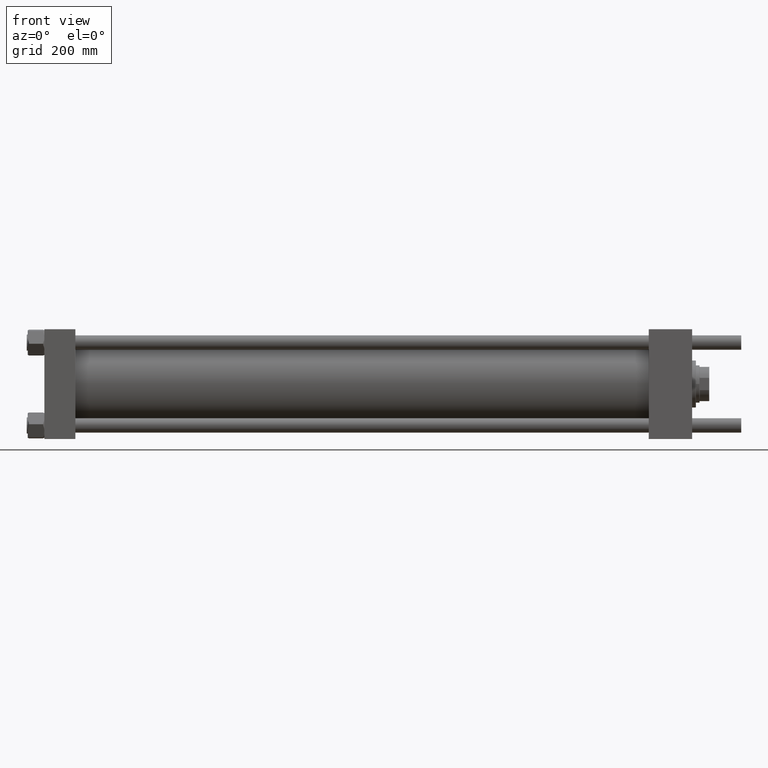
[diagram: clean part render]
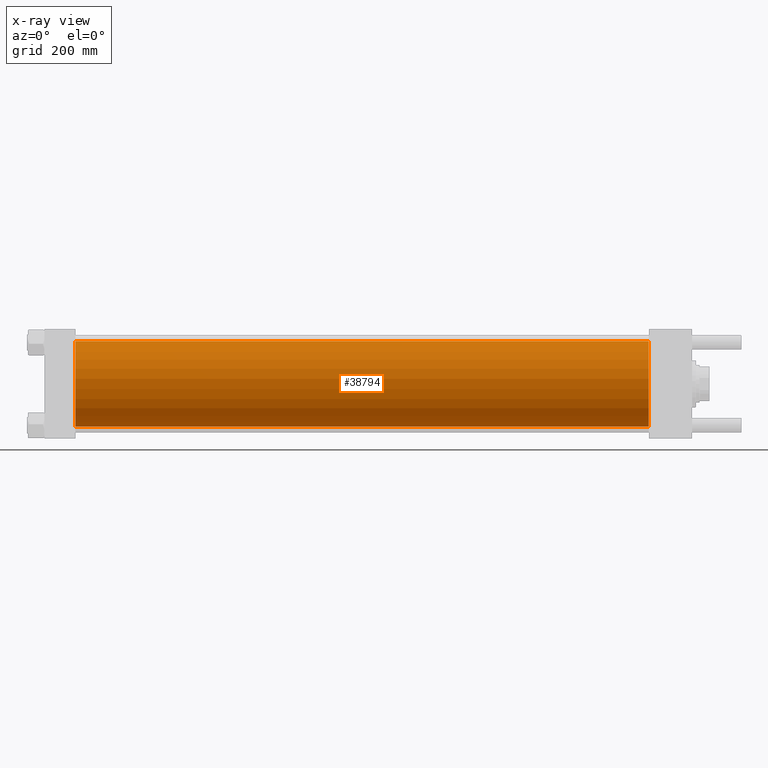
[diagram: x-ray — body ghosted, one internal face saturated and labeled with its STEP entity id]
A machine part, front view, then the same camera in x-ray: the body is ghosted and one INTERNAL B-rep face — a face not visible from any outside direction — is saturated and labeled: STEP entity #38794.
In plain terms, the highlighted cylindrical surface (partial cylindrical patch) has radius 80 mm, axis along (-1, -0, -0).
Its self-contained STEP definition (entity closure, byte-faithful):
#67 = DIRECTION ( 'NONE',  ( -1.000000000000000000, -0.000000000000000000, -0.000000000000000000 ) ) ;
#972 = DIRECTION ( 'NONE',  ( 0.000000000000000000, 0.000000000000000000, -1.000000000000000000 ) ) ;
#1346 = CARTESIAN_POINT ( 'NONE',  ( 1130.000000000000227, 7.195089179213615410E-15, -80.00000000000000000 ) ) ;
#2785 = CARTESIAN_POINT ( 'NONE',  ( 1130.000000000000227, -2.602085213965210642E-15, 0.000000000000000000 ) ) ;
#4455 = VECTOR ( 'NONE', #41855, 1000.000000000000000 ) ;
#6237 = ORIENTED_EDGE ( 'NONE', *, *, #20116, .T. ) ;
#8395 = VERTEX_POINT ( 'NONE', #46470 ) ;
#12085 = ORIENTED_EDGE ( 'NONE', *, *, #13089, .F. ) ;
#13089 = EDGE_CURVE ( 'NONE', #8395, #51812, #46896, .T. ) ;
#13662 = CYLINDRICAL_SURFACE ( 'NONE', #34698, 80.00000000000000000 ) ;
#14558 = VERTEX_POINT ( 'NONE', #22919 ) ;
#14847 = DIRECTION ( 'NONE',  ( 1.000000000000000000, 0.000000000000000000, 0.000000000000000000 ) ) ;
#15054 = EDGE_LOOP ( 'NONE', ( #6237, #46865, #12085, #44842 ) ) ;
#16403 = AXIS2_PLACEMENT_3D ( 'NONE', #45525, #14847, #972 ) ;
#16438 = VECTOR ( 'NONE', #42796, 1000.000000000000000 ) ;
#19991 = EDGE_CURVE ( 'NONE', #25332, #51812, #45624, .T. ) ;
#20116 = EDGE_CURVE ( 'NONE', #14558, #25332, #34981, .T. ) ;
#21291 = DIRECTION ( 'NONE',  ( 1.000000000000000000, 0.000000000000000000, 0.000000000000000000 ) ) ;
#22919 = CARTESIAN_POINT ( 'NONE',  ( 1130.000000000000227, -2.602085213965210642E-15, 80.00000000000000000 ) ) ;
#25158 = LINE ( 'NONE', #48003, #16438 ) ;
#25332 = VERTEX_POINT ( 'NONE', #37961 ) ;
#27599 = AXIS2_PLACEMENT_3D ( 'NONE', #2785, #21291, #29981 ) ;
#29981 = DIRECTION ( 'NONE',  ( 0.000000000000000000, 0.000000000000000000, -1.000000000000000000 ) ) ;
#34698 = AXIS2_PLACEMENT_3D ( 'NONE', #34804, #67, #44054 ) ;
#34804 = CARTESIAN_POINT ( 'NONE',  ( 1130.000000000000227, -2.602085213965210642E-15, 0.000000000000000000 ) ) ;
#34981 = CIRCLE ( 'NONE', #27599, 80.00000000000000000 ) ;
#37961 = CARTESIAN_POINT ( 'NONE',  ( 1130.000000000000227, 7.195089179213615410E-15, -80.00000000000000000 ) ) ;
#38794 = ADVANCED_FACE ( 'NONE', ( #47847 ), #13662, .F. ) ;
#41855 = DIRECTION ( 'NONE',  ( -1.000000000000000000, -0.000000000000000000, -0.000000000000000000 ) ) ;
#42796 = DIRECTION ( 'NONE',  ( -1.000000000000000000, -0.000000000000000000, -0.000000000000000000 ) ) ;
#44054 = DIRECTION ( 'NONE',  ( 0.000000000000000000, 0.000000000000000000, 1.000000000000000000 ) ) ;
#44842 = ORIENTED_EDGE ( 'NONE', *, *, #46191, .F. ) ;
#45525 = CARTESIAN_POINT ( 'NONE',  ( 58.00000000000000000, -2.602085213965210642E-15, 0.000000000000000000 ) ) ;
#45624 = LINE ( 'NONE', #1346, #4455 ) ;
#46191 = EDGE_CURVE ( 'NONE', #14558, #8395, #25158, .T. ) ;
#46470 = CARTESIAN_POINT ( 'NONE',  ( 58.00000000000000000, -2.602085213965210642E-15, 80.00000000000000000 ) ) ;
#46865 = ORIENTED_EDGE ( 'NONE', *, *, #19991, .T. ) ;
#46896 = CIRCLE ( 'NONE', #16403, 80.00000000000000000 ) ;
#47847 = FACE_OUTER_BOUND ( 'NONE', #15054, .T. ) ;
#48003 = CARTESIAN_POINT ( 'NONE',  ( 1130.000000000000227, -2.602085213965210642E-15, 80.00000000000000000 ) ) ;
#51812 = VERTEX_POINT ( 'NONE', #55455 ) ;
#55455 = CARTESIAN_POINT ( 'NONE',  ( 58.00000000000000000, 7.195089179213615410E-15, -80.00000000000000000 ) ) ;